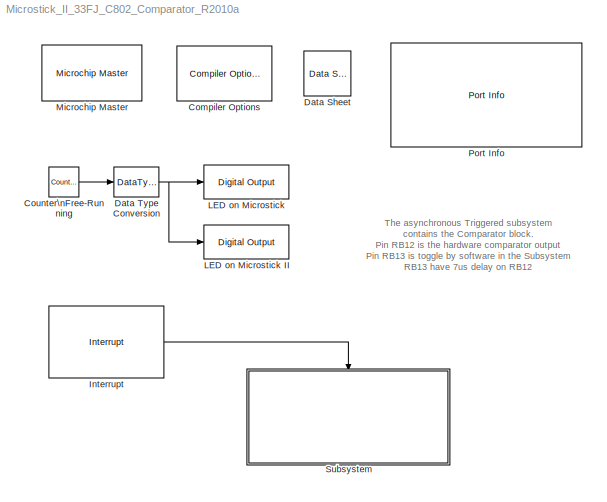
MODEL Microstick_II_33FJ_C802_Comparator_R2010a
KIND model
BLOCK [Reference] Compiler Options  REF=MCHP_Blockset/System Configuration/Compiler Options
  AssemblyListing = on
  COMP_LIST = Dynamic Options
  COMP_LIST_TXT = xc16 - v1.36
  DEBUG_INFO = on
  HEAP_SIZE = 0
  LATEST_CMPLR = on
  MAGGREGATE = on
  MCHP_MASTERLINK = Microstick_II_33FJ_C802_Comparator_R2010a/Microchip Master
  MCHP_MULTITHREAD_COMPILATION = off
  MCODE = is less than 32768 (faster)
  MCONST = in code memory
  MDATA = Use only memory below address 8192 (faster)
  MLARGEARRAY = off
  MPLAB_LINKLIB = default
  MPLAB_LINKLIB1 = default
  MSCALAR = Use only memory below address 8192 (faster)
  NO_EDS_WARN = on
  OMF = elf
  OPTIMIZATION_FLTO = on
  OPTIMIZATION_LEVEL = 1
  OPTIMIZATION_REORDER = off
  PRINT_STATISTICS = off
  PROCEDURAL_ABSTRACTION = off
  Ports = []
  ProduceHexOutput = off
  SID = 2
  SourceBlock = MCHP_Blockset/System Configuration/Compiler Options
  UNROLL_LOOPS = off
  USE_64BIT_DOUBLE = off
  UseCustom_LinkerScript = off
BLOCK [Reference] Counter\nFree-Running  REF=simulink/Sources/Counter\nFree-Running
  FunctionWithSeparateData = off
  NumBits = 1
  Ports = [0, 1]
  RTWMemSecDataConstants = Inherit from model
  RTWMemSecDataInternal = Inherit from model
  RTWMemSecDataParameters = Inherit from model
  RTWMemSecFuncExecute = Inherit from model
  RTWMemSecFuncInitTerm = Inherit from model
  SID = 19
  ShowPortLabels = FromPortIcon
  SourceBlock = simulink/Sources/Counter\nFree-Running
  SourceType = Counter Free-Running
  SystemSampleTime = -1
  tsamp = .05
BLOCK [Reference] Data Sheet  REF=MCHP_Blockset/System Info/Data Sheet
  AttributesFormatString = %<cpy_MCHP_Id>
  DOC_FileLastCheckTime = [0 0 0 0 0 0]
  DOC_MCHP_Id = 33FJ64MC802
  DOC_Type = datasheet
  MCHP_MASTERLINK = Microstick_II_33FJ_C802_Comparator_R2010a/Microchip Master
  Ports = []
  SID = 3
  SourceBlock = MCHP_Blockset/System Info/Data Sheet
  cpy_MCHP_Id = 33FJ128MC802
BLOCK [DataTypeConversion] Data Type Conversion
  RndMeth = Floor
  SID = 20
  SaturateOnIntegerOverflow = off
BLOCK [Reference] Interrupt  REF=MCHP_Blockset/System Functions/Interrupt
  FPUNoSave = on
  Info = 0
  IntPriority = 6
  IntPriority_Info = 5
  Interruption = Dynamic Options
  InterruptionLongDesc = CMP1 all change
  Interruption_TXT = CMP1a
  MCHP_MASTERLINK = Microstick_II_33FJ_C802_Comparator_R2010a/Microchip Master
  Ports = [0, 1]
  SID = 10
  SS_ARCH = 16
  SS_ASYNCHRONOUS_INTERRUPT = 1
  SS_AsyncTaskPriority = 8
  SS_AsyncTimerRes = -1
  SS_TIMESOURCE = 1
  SourceBlock = MCHP_Blockset/System Functions/Interrupt
  SourceType = Interruption (Call Simulink Subfunction)
  StartupExecute = off
  Status = OK
  TIMER_Resolution = Dynamic Options
  TIMER_Resolution_TXT = Resol: 0.2714(us)  -  MaxPer: 0.0178(s)
  Triggered_Sub_TimeSource = is derived from model base rate
  TrigsPeriod = 0
BLOCK [Reference] LED on Microstick  REF=MCHP_Blockset/Digital IO/Digital Output
  FunctionWithSeparateData = off
  MCHP_MASTERLINK = Microstick_II_33FJ_C802_Comparator_R2010a/Microchip Master
  ORDERING = None
  PACK = off
  PIN = 15
  PORT = Dynamic Options
  PORT_TXT = B   [ 0 : 15 ]
  Ports = [1]
  READPREVIOUS = off
  RTWMemSecDataConstants = Inherit from model
  RTWMemSecDataInternal = Inherit from model
  RTWMemSecDataParameters = Inherit from model
  RTWMemSecFuncExecute = Inherit from model
  RTWMemSecFuncInitTerm = Inherit from model
  SID = 18
  SIMULTANEOUS = off
  SampleTime = -1
  ShowPortLabels = FromPortIcon
  SourceBlock = MCHP_Blockset/Digital IO/Digital Output
  SystemSampleTime = -1
BLOCK [Reference] LED on Microstick II  REF=MCHP_Blockset/Digital IO/Digital Output
  FunctionWithSeparateData = off
  MCHP_MASTERLINK = Microstick_II_33FJ_C802_Comparator_R2010a/Microchip Master
  ORDERING = None
  PACK = off
  PIN = 0
  PORT = Dynamic Options
  PORT_TXT = A   [ 0 : 4 ]
  Ports = [1]
  READPREVIOUS = off
  RTWMemSecDataConstants = Inherit from model
  RTWMemSecDataInternal = Inherit from model
  RTWMemSecDataParameters = Inherit from model
  RTWMemSecFuncExecute = Inherit from model
  RTWMemSecFuncInitTerm = Inherit from model
  SID = 21
  SIMULTANEOUS = off
  SampleTime = -1
  ShowPortLabels = FromPortIcon
  SourceBlock = MCHP_Blockset/Digital IO/Digital Output
  SystemSampleTime = -1
BLOCK [Reference] Microchip Master  REF=MCHP_Blockset/System Configuration/Microchip Master
  ACLKCON = Optimized for PWM resolution & ADC conversion speed
  ACTIV_PLL = off
  ACTIV_PLL_spd = off
  AIVTDIS = Disable Alternate Vector Table
  ALTADREF = Not used
  ALTCMPI = Not used
  ALTCVREF = Not used
  ALTI2C = I2C mapped to SDA1/SCL1 pins
  ALTI2C1 = I2C1 mapped to SDA1/SCL1 pins
  ALTI2C2 = I2C2 mapped to SDA2/SCL2 pins
  ALTI2C3 = I2C3 mapped to SDA3/SCL3 pins
  ALTPMP = Not used
  ALTQIO = QEA1; QEB1; INDX1 are selected as inputs to QEI1
  ALTRB6 = Not used
  ALTSS1 = SS1A is selected as the I/O pin for SPI1
  ALTVREF = Not used
  APL = Aux Flash Code protect is disabled
  APLK = Aux Flash Write Protection or Code Protection is Enabled
  ATMOD8 = Not used
  AWRP = Aux Flash may be written
  BACKBUG = Not used
  BKBUG = Not used
  BODENV = 2.7V
  BOOTISA = Boot code and Exception code is MIPS32
  BOREN = Disable
  BOREN0 = Enabled
  BOREN1 = Not used
  BORV = Not used
  BSEN = No Boot Segment
  BSLIM = Not used
  BSS = No Boot program Flash segment
  BSS2 = No Boot Segment
  BTMODE = Not used
  BTSWP = BOOTSWP instruction is disabled
  BUSYFLAG = Dynamic Options
  BUSYFLAG_TXT = None
  BWP = Not used
  BWRP = Boot Segment may be written
  CMPPOL0 = Hysteresis is applied to falling edge
  CMPPOL1 = Hysteresis is applied to falling edge
  COE = Not used
  CP = Protection Disabled
  CSEQ = Not used
  CSS = No Protection (other than CWRP)
  CTXT1 = Not Assigned
  CTXT2 = Not Assigned
  CWRP = Configuration Segment may be written
  DBCC = No Cross Connection between DAC outputs
  DBGPER = Allow CPU access to all permission regions
  DEBUG = Debugger is disabled
  DFMCY = Not used
  DISUVREG = Not used
  DMTCNT = 2^8 (256)
  DMTEN = Dead Man Timer is Enabled and cannot be disabled by software
  DMTINTV = Window/Interval value is 127/128 counter value
  DMTIVT = Not used
  DSBOREN = Enable ZPBOR during Deep Sleep Mode
  DSLPBOR = Not used
  DSSWEN = Not used
  DSWDTEN = Enable DSWDT during Deep Sleep Mode
  DSWDTOSC = Select LPRC as DSWDT Reference clock
  DSWDTPS = 1:2^36
  EBS = No Boot EEPROM
  EJTAGBEN = Normal EJTAG functionality
  ESS = No Segment Data EEPROM
  EXTDDRSIZE = Not used
  FCANIO = Not used
  FCKSM = Both Clock switching and Fail-safe Clock Monitor are disabled
  FCKSMEN = Sw Disabled; Mon Disabled
  FDMTEN = Deadman Timer is disabled
  FECCCON = ECC and Dynamic ECC are disabled (ECCCON bits are writable)
  FETHIO = Default Ethernet I/O
  FMIIEN = MII Enabled
  FNOSC = Internal Fast RC (FRC)
  FOS = Primary Oscillator
  FOSFPR = HS3 w/PLL 16x
  FPBDIV = Not used
  FPLLICLK = FRC is input to the System PLL
  FPLLIDIV = 8x Divider
  FPLLMUL = Not used
  FPLLMULT = PLL Multiply by 128
  FPLLODIV = 32x Divider
  FPLLRNG = 34-68 MHz Input
  FPR = ECIO w/ PLL 16x
  FPWRT = 128ms
  FRANGE = High Range
  FSLEEP = Flash is powered down when the device is in Sleep mode
  FSOSCEN = Disable Secondary Oscillator
  FSRSSEL = Not used
  FUSBIDIO = Controlled by the USB Module
  FVBUSONIO = Not used
  FWDTEN = Disable
  FWDTWINSZ = Window size is 25%
  FWPSA = 1:512
  FWPSA0 = 1:128
  FWPSB = 1:16
  GCP = General Segment Code protect is Disabled
  GSS = User program memory is not code-protected
  GSS0 = Not used
  GSSK = General Segment Write Protection or Code Protection is Enabled
  GWRP = General Segment may be written
  HPOL = PWM module high side output pins have active-high output polarity
  HYST0 = 45 mV Hysteresis
  HYST1 = 45 mV Hysteresis
  I2C1SEL = Not used
  I2C2SEL = Not used
  ICESEL = Communicate on PGEC1/PGED1
  ICS = Communicate on PGEC1 and PGED1
  IESO = Start up with FRC; then switch
  INT_PRIORITY_DMA = 0
  IOL1WAY = Allow Only One Re-configuration
  JTAGEN = Disable
  LPCFG = Not used
  LPOL = PWM module low side output pins have active-high output polarity
  LPRCSEL = Not used
  LVRCFG = Not used
  MCHPVAR = MCHP.fcy.MIPS=3685000;MCHP.fcy.SYSCLK=3685000;MCHP.fcy.ADC=3685000;MCHP.fcy.Comparator=3685000;MCHP.fcy.I2C=3685000;MCHP.fcy.SPI=3685000;MCHP.fcy.UART=3685000;MCHP.fcy.Timers=3685000;MCHP.fcy.OC=3685000;MCHP.fcy.IC=3685000;MCHP.fcy.Ports=3685000;MCHP.fcy.QEI=3685000;MCHP.PowerSave=0;MCHP.TimeStepFactor=1;MCHP.TimeStep_Timer=1;MCHP.NTIMERS=5;MCHP.id.name='33FJ128MC802';MCHP.id.N=reshape([33 128 802...<+12697ch>
  MCHP_CRC = 8018332
  MCHP_PLLRegisters = [-1 -1 -1 -1 -1]
  MCHP_TIMER_REQUEST = {Time Step}{TS}0:2:3:1:[]:3685;
  MCHP_TIMER_RESULT = [1 3684 ]
  MCLRE = Enabled
  MIPS = 3.6850000000000001 * 1e6
  MIPS_DESIRED = 7370000
  MIPS_DESIRED_spd = 7370000
  ON = Not used
  OSCILLATOR_SELECT = Internal Fast RC (FRC)
  OSCILLATOR_SELECT_spd = Internal Fast RC (FRC)
  OSCIOFCN = Not used
  OSCIOFNC = general purpose digital I/O pin
  PGL1WAY = Allow only one reconfiguration
  PICREF = 33FJ128MC802
  PLL96MHZ = Not used
  PLLDIV = Not used
  PLLKEN = Clock switch to PLL source will wait until the PLL lock signal is valid.
  PLLSS = Not used
  PLL_96MHZ = Not used
  PMDL1WAY = Allow only one reconfiguration
  POSCBOOST = Boost the kick start of the oscillator
  POSCFREQ = Not used
  POSCGAIN = 2x gain setting
  POSCMD = Primary Oscillator Disabled
  POSCMOD = Primary Oscillator Disabled
  POWERSAVE = off
  PWMLOCK = PWM registers may be written without key sequence
  PWMPIN = PWM module pins controlled by PORT register at device Reset
  PWP = Not used
  PWRTEN = Not used
  Ports = []
  QUARTZ = 7.37e+06
  QUARTZ_spd = 7.37e+06
  RBS = No Boot RAM
  RES = Not used
  RES1 = Not used
  RES2 = Not used
  RESERVED1 = Not used
  RETCFG = Not used
  RSS = No Secure RAM
  RSTPRI = Device will obtain reset instruction from Primary flash
  RTCBAT = Not used
  RTCOSC = Not used
  SEQNUM = Not used
  SID = 1
  SMCLR = MCLR pin generates a normal system Reset
  SOSCBOOST = Boost the kick start of the oscillator
  SOSCGAIN = 2x gain setting
  SOSCSEL = Not used
  SOSCSRC = Not used
  SSS = No Secure Segment
  SWRP = Secure segment may be written
  SourceBlock = MCHP_Blockset/System Configuration/Microchip Master
  TEMP = Not used
  TIMESTEP_REF = Timer  ( 0.001s )
  TRCEN = Trace features in the CPU are enabled
  TSEQ = Not used
  UPLLEN = USB PLL Disabled
  UPLLFSEL = USB PLL input is 24 MHz
  UPLLIDIV = Not used
  USERID = Not used
  VBTBOR = Not used
  WDT = Disable
  WDTCLK = Not used
  WDTCMX = Not used
  WDTEN = Disable
  WDTPOST = 1:32768
  WDTPRE = 1:128
  WDTPS = 1:32768
  WDTSPGM = WDT stops during Flash programming
  WDTWIN = WDT Window is 25% of WDT period
  WINDIS = Watchdog Timer in Non-Window mode
  WPCFG = Not used
  WPDIS = Not used
  WPEND = Not used
  WPFP = Not used
  WUTSEL = Not used
  WWDTEN = Non-Window mode
  XTBST = Boost the kick-start
  XTCFG = 24-32 MHz crystals
  nSEQNUM = Not used
BLOCK [Reference] Port Info  REF=MCHP_Blockset/System Info/Port Info
  MCHP_MASTERLINK = Microstick_II_33FJ_C802_Comparator_R2010a/Microchip Master
  Ports = []
  SID = 6
  SourceBlock = MCHP_Blockset/System Info/Port Info
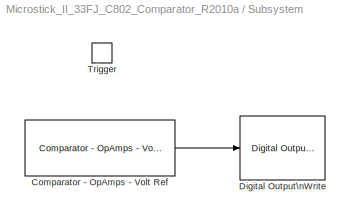
BLOCK [SubSystem] Subsystem
  FunctionWithSeparateData = off
  MaskHideContents = off
  MinAlgLoopOccurrences = off
  Opaque = off
  Ports = [0, 0, 0, 1]
  PropExecContextOutsideSubsystem = off
  RTWSystemCode = Auto
  RequestExecContextInheritance = off
  SID = 11
BLOCK [Reference] Subsystem/Comparator - OpAmps - Volt Ref  REF=MCHP_Blockset/Analog IO/Comparator - OpAmps - Volt Ref
  MCHP_MASTERLINK = Microstick_II_33FJ_C802_Comparator_R2010a/Microchip Master
  MCHP_PORT = {Comparator Output 1}{C1OUT}14:1:P12;{Comparator1 V-}{Comp1 V-}14:2:B2;
  MCHP_USER_INTERRUPTS = {CM1}{CMP1a}{CMP1 all change}{0};
  MCHP_params = s.CVR1OE=0;s.CVR2OE=0;s.VREFSEL='Voltage Ref 1';s.RLaddle=reshape([20 1],1,2);s.AVdd=reshape({ '3.3','3.3'},1,2);s.AVss=reshape({ '0','0'},1,2);s.CVRSS=reshape([0 0],1,2);s.CON_OPMODE_CPOL=reshape([1 0 0 0 0],1,5);s.OutputPort_COE_RP=reshape({ 'B12 / P12 / Pin[23]','None','None','None','None'},1,5);s.InputP_CREF=reshape([1 0 0 0 0],1,5);s.InputN_CCH=reshape([0 0 0 0 0],1,5);s.Trigger_EventInterrup...<+1139ch>
  ORDERING = 0
  Ports = [0, 1]
  SID = 22
  S_INPUT = [5  5]
  S_INPUT_Size = [2  2]
  S_OUTPUT = [5]
  S_OUTPUT_Size = [4]
  SampleTime = -1
  SourceBlock = MCHP_Blockset/Analog IO/Comparator - OpAmps - Volt Ref
  SourceType = Comparator / Op amp (DS70357 & DS70648)
  UserData = DataTag0
  UserDataPersistent = on
BLOCK [Reference] Subsystem/Digital Output\nWrite  REF=MCHP_Blockset/Digital IO/Digital Output\nWrite
  MCHP_MASTERLINK = Microstick_II_33FJ_C802_Comparator_R2010a/Microchip Master
  MCHP_PORT = {Digital Out}{DOU}1:1:B13;
  ORDERING = None
  PACK = off
  PIN = 13
  PORT = Dynamic Options
  PORT_TXT = B   [ 0 : 15 ]
  Ports = [1]
  SID = 25
  SIMULTANEOUS = off
  SampleTime = -1
  SourceBlock = MCHP_Blockset/Digital IO/Digital Output\nWrite
  SourceType = Output driver for Digital Output Pins
BLOCK [TriggerPort] Subsystem/Trigger
  PortDimensions = 1
  Ports = []
  SID = 14
  StatesWhenEnabling = held
  TriggerType = function-call
ANNOTATION (root): The asynchronous Triggered subsystem\ncontains the Comparator block.\nPin RB12 is the hardware comparator output\nPin RB13 is toggle by software in the Subsystem\nRB13 have 7us delay on RB12
LINE Counter\nFree-Running:1 -> Data Type Conversion:1
NET Data Type Conversion:1 -> LED on Microstick II:1, LED on Microstick:1
LINE Interrupt:1 -> Subsystem:trigger
LINE Subsystem/Comparator - OpAmps - Volt Ref:1 -> Subsystem/Digital Output\nWrite:1
note: NET lines group one-source signal fan-out (src -> all destinations, sorted); 1:1 wires keep LINE
